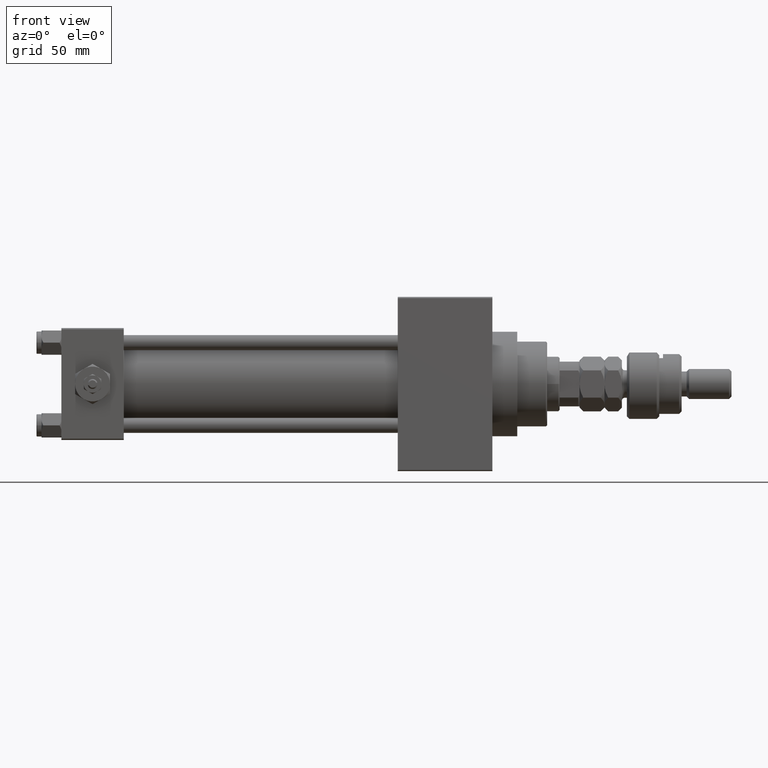
[diagram: clean part render]
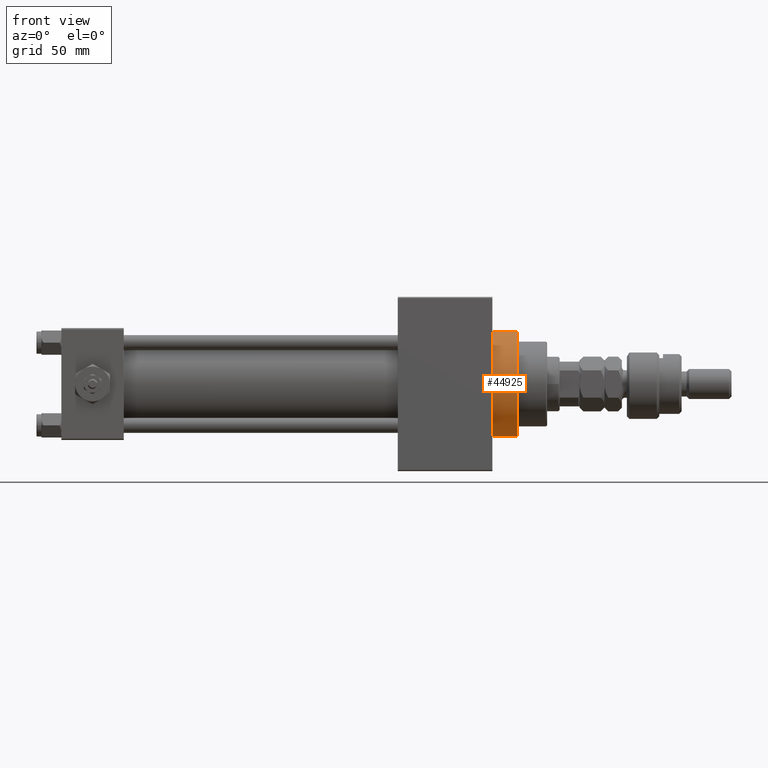
[diagram: same view with one face highlighted and labeled with its STEP entity id]
A machine part, front view. The second image highlights one B-rep face of the part: STEP entity #44925.
In plain terms, the highlighted cylindrical surface (partial cylindrical patch) has radius 21 mm, axis along (-1, -0, -0).
Its self-contained STEP definition (entity closure, byte-faithful):
#2149 = DIRECTION ( 'NONE',  ( 1.000000000000000000, 0.000000000000000000, 0.000000000000000000 ) ) ;
#2211 = AXIS2_PLACEMENT_3D ( 'NONE', #21897, #2149, #26050 ) ;
#2418 = DIRECTION ( 'NONE',  ( -1.000000000000000000, -0.000000000000000000, -0.000000000000000000 ) ) ;
#2866 = DIRECTION ( 'NONE',  ( 0.000000000000000000, 0.000000000000000000, -1.000000000000000000 ) ) ;
#2977 = CARTESIAN_POINT ( 'NONE',  ( 183.0000000000000284, 0.000000000000000000, 21.00000000000000000 ) ) ;
#3013 = AXIS2_PLACEMENT_3D ( 'NONE', #11165, #30409, #2866 ) ;
#6123 = EDGE_CURVE ( 'NONE', #46934, #35979, #29546, .T. ) ;
#6815 = VECTOR ( 'NONE', #2418, 1000.000000000000000 ) ;
#7097 = EDGE_CURVE ( 'NONE', #18230, #15327, #7193, .T. ) ;
#7193 = CIRCLE ( 'NONE', #2211, 21.00000000000000000 ) ;
#7941 = LINE ( 'NONE', #23789, #47758 ) ;
#9523 = ORIENTED_EDGE ( 'NONE', *, *, #38296, .F. ) ;
#10207 = CARTESIAN_POINT ( 'NONE',  ( 183.0000000000000284, 2.571758278209441661E-15, -21.00000000000000000 ) ) ;
#11165 = CARTESIAN_POINT ( 'NONE',  ( 173.0000000000000284, 0.000000000000000000, 0.000000000000000000 ) ) ;
#15327 = VERTEX_POINT ( 'NONE', #16237 ) ;
#16237 = CARTESIAN_POINT ( 'NONE',  ( 183.0000000000000284, 2.571758278209441661E-15, -21.00000000000000000 ) ) ;
#18230 = VERTEX_POINT ( 'NONE', #2977 ) ;
#18368 = ORIENTED_EDGE ( 'NONE', *, *, #42922, .T. ) ;
#20397 = DIRECTION ( 'NONE',  ( -1.000000000000000000, -0.000000000000000000, -0.000000000000000000 ) ) ;
#21897 = CARTESIAN_POINT ( 'NONE',  ( 183.0000000000000284, 0.000000000000000000, 0.000000000000000000 ) ) ;
#23564 = ORIENTED_EDGE ( 'NONE', *, *, #6123, .T. ) ;
#23789 = CARTESIAN_POINT ( 'NONE',  ( 183.0000000000000284, 0.000000000000000000, 21.00000000000000000 ) ) ;
#23804 = CARTESIAN_POINT ( 'NONE',  ( 183.0000000000000284, 0.000000000000000000, 0.000000000000000000 ) ) ;
#26050 = DIRECTION ( 'NONE',  ( 0.000000000000000000, 0.000000000000000000, -1.000000000000000000 ) ) ;
#27960 = CYLINDRICAL_SURFACE ( 'NONE', #41003, 21.00000000000000000 ) ;
#29546 = CIRCLE ( 'NONE', #3013, 21.00000000000000000 ) ;
#30409 = DIRECTION ( 'NONE',  ( 1.000000000000000000, 0.000000000000000000, 0.000000000000000000 ) ) ;
#30741 = LINE ( 'NONE', #10207, #6815 ) ;
#32428 = CARTESIAN_POINT ( 'NONE',  ( 173.0000000000000284, 0.000000000000000000, 21.00000000000000000 ) ) ;
#32692 = CARTESIAN_POINT ( 'NONE',  ( 173.0000000000000284, 2.571758278209441661E-15, -21.00000000000000000 ) ) ;
#34936 = ORIENTED_EDGE ( 'NONE', *, *, #7097, .F. ) ;
#35979 = VERTEX_POINT ( 'NONE', #32692 ) ;
#38296 = EDGE_CURVE ( 'NONE', #15327, #35979, #30741, .T. ) ;
#39678 = DIRECTION ( 'NONE',  ( -1.000000000000000000, -0.000000000000000000, -0.000000000000000000 ) ) ;
#41003 = AXIS2_PLACEMENT_3D ( 'NONE', #23804, #39678, #43061 ) ;
#42922 = EDGE_CURVE ( 'NONE', #18230, #46934, #7941, .T. ) ;
#43061 = DIRECTION ( 'NONE',  ( 0.000000000000000000, 0.000000000000000000, 1.000000000000000000 ) ) ;
#44925 = ADVANCED_FACE ( 'NONE', ( #51150 ), #27960, .T. ) ;
#46934 = VERTEX_POINT ( 'NONE', #32428 ) ;
#47758 = VECTOR ( 'NONE', #20397, 1000.000000000000000 ) ;
#48951 = EDGE_LOOP ( 'NONE', ( #9523, #34936, #18368, #23564 ) ) ;
#51150 = FACE_OUTER_BOUND ( 'NONE', #48951, .T. ) ;